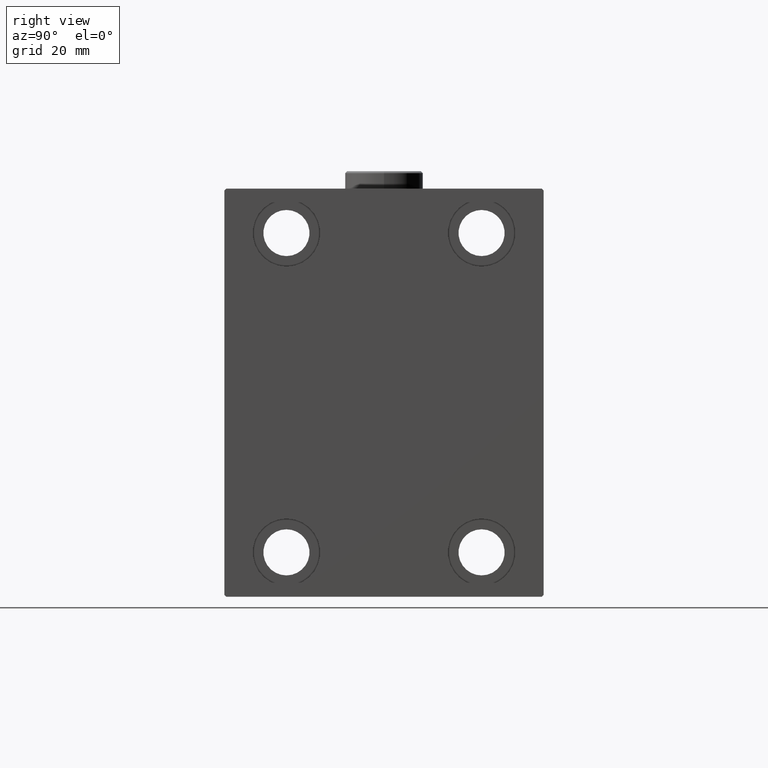
[diagram: clean part render]
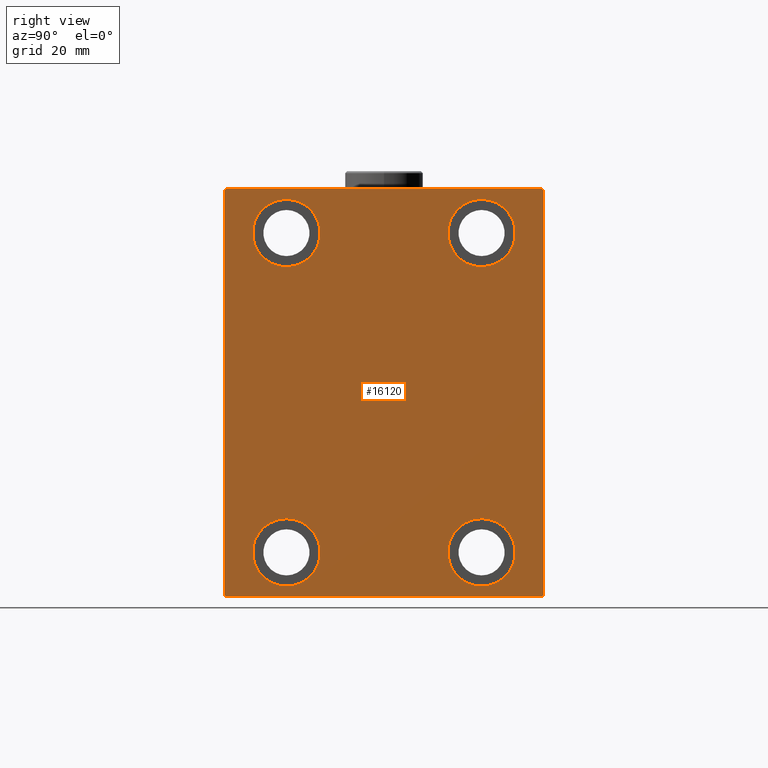
[diagram: same view with one face highlighted and labeled with its STEP entity id]
A machine part, right view. The second image highlights one B-rep face of the part: STEP entity #16120.
In plain terms, the highlighted planar face has unit normal (1, 0, 0).
Its self-contained STEP definition (entity closure, byte-faithful):
#36 = EDGE_CURVE ( 'NONE', #36765, #25345, #5199, .T. ) ;
#104 = CARTESIAN_POINT ( 'NONE',  ( 128.0000000000000000, 27.49999999999998934, -35.49999999999998579 ) ) ;
#234 = CIRCLE ( 'NONE', #43379, 9.500000000000001776 ) ;
#352 = CARTESIAN_POINT ( 'NONE',  ( 128.0000000000000000, -27.50000000000000000, -35.49999999999998579 ) ) ;
#570 = DIRECTION ( 'NONE',  ( -1.000000000000000000, -0.000000000000000000, -0.000000000000000000 ) ) ;
#1124 = AXIS2_PLACEMENT_3D ( 'NONE', #42879, #25683, #4851 ) ;
#1295 = VERTEX_POINT ( 'NONE', #21478 ) ;
#1840 = VECTOR ( 'NONE', #5210, 1000.000000000000000 ) ;
#2194 = DIRECTION ( 'NONE',  ( 0.000000000000000000, 0.000000000000000000, 1.000000000000000000 ) ) ;
#2512 = CIRCLE ( 'NONE', #18625, 9.500000000000001776 ) ;
#2750 = CARTESIAN_POINT ( 'NONE',  ( 128.0000000000000000, -51.00000000000000000, 51.00000000000000000 ) ) ;
#2752 = DIRECTION ( 'NONE',  ( -1.000000000000000000, -0.000000000000000000, -0.000000000000000000 ) ) ;
#2951 = VERTEX_POINT ( 'NONE', #4826 ) ;
#3701 = VERTEX_POINT ( 'NONE', #22477 ) ;
#3929 = CIRCLE ( 'NONE', #17855, 9.500000000000001776 ) ;
#4826 = CARTESIAN_POINT ( 'NONE',  ( 128.0000000000000000, 27.50000000000001066, 54.50000000000000711 ) ) ;
#4851 = DIRECTION ( 'NONE',  ( 0.000000000000000000, 0.000000000000000000, -1.000000000000000000 ) ) ;
#5177 = DIRECTION ( 'NONE',  ( 0.000000000000000000, 0.000000000000000000, 1.000000000000000000 ) ) ;
#5199 = CIRCLE ( 'NONE', #9573, 9.500000000000001776 ) ;
#5210 = DIRECTION ( 'NONE',  ( -0.000000000000000000, -0.7071067811865671127, 0.7071067811865279218 ) ) ;
#5244 = EDGE_CURVE ( 'NONE', #42056, #20050, #34265, .T. ) ;
#5653 = DIRECTION ( 'NONE',  ( -1.000000000000000000, -0.000000000000000000, -0.000000000000000000 ) ) ;
#5670 = DIRECTION ( 'NONE',  ( -0.000000000000000000, 0.7071067811865474617, -0.7071067811865474617 ) ) ;
#5776 = CARTESIAN_POINT ( 'NONE',  ( 128.0000000000000000, -45.00000000000000000, -57.50000000000000711 ) ) ;
#6927 = FACE_BOUND ( 'NONE', #15525, .T. ) ;
#6990 = CARTESIAN_POINT ( 'NONE',  ( 128.0000000000000000, -27.50000000000000000, -44.99999999999998579 ) ) ;
#7538 = CARTESIAN_POINT ( 'NONE',  ( 128.0000000000000000, -27.50000000000000000, -44.99999999999998579 ) ) ;
#8603 = VERTEX_POINT ( 'NONE', #13261 ) ;
#8627 = CARTESIAN_POINT ( 'NONE',  ( 128.0000000000000000, -27.50000000000000000, -54.49999999999998579 ) ) ;
#9199 = AXIS2_PLACEMENT_3D ( 'NONE', #29918, #16195, #37027 ) ;
#9522 = EDGE_CURVE ( 'NONE', #1295, #25813, #16744, .T. ) ;
#9573 = AXIS2_PLACEMENT_3D ( 'NONE', #7538, #27920, #18105 ) ;
#9759 = AXIS2_PLACEMENT_3D ( 'NONE', #6990, #570, #17765 ) ;
#9775 = ORIENTED_EDGE ( 'NONE', *, *, #9522, .T. ) ;
#9883 = EDGE_CURVE ( 'NONE', #2951, #22523, #234, .T. ) ;
#9923 = VECTOR ( 'NONE', #11597, 1000.000000000000000 ) ;
#10462 = ORIENTED_EDGE ( 'NONE', *, *, #36, .T. ) ;
#10494 = ORIENTED_EDGE ( 'NONE', *, *, #28536, .T. ) ;
#11040 = EDGE_CURVE ( 'NONE', #25345, #36765, #29501, .T. ) ;
#11042 = FACE_OUTER_BOUND ( 'NONE', #19273, .T. ) ;
#11586 = ORIENTED_EDGE ( 'NONE', *, *, #9883, .T. ) ;
#11597 = DIRECTION ( 'NONE',  ( 0.000000000000000000, -1.000000000000000000, -1.541976423090495387E-16 ) ) ;
#11718 = EDGE_LOOP ( 'NONE', ( #29528, #11586 ) ) ;
#12333 = EDGE_CURVE ( 'NONE', #22523, #2951, #3929, .T. ) ;
#12414 = LINE ( 'NONE', #5776, #37193 ) ;
#13261 = CARTESIAN_POINT ( 'NONE',  ( 128.0000000000000000, -27.49999999999998934, 54.50000000000000711 ) ) ;
#15438 = DIRECTION ( 'NONE',  ( -1.000000000000000000, -0.000000000000000000, -0.000000000000000000 ) ) ;
#15525 = EDGE_LOOP ( 'NONE', ( #44540, #31557 ) ) ;
#16120 = ADVANCED_FACE ( 'NONE', ( #38301, #6927, #20908, #18612, #11042 ), #25233, .T. ) ;
#16195 = DIRECTION ( 'NONE',  ( -1.000000000000000000, -0.000000000000000000, -0.000000000000000000 ) ) ;
#16294 = ORIENTED_EDGE ( 'NONE', *, *, #33199, .T. ) ;
#16744 = LINE ( 'NONE', #2750, #21446 ) ;
#16816 = CARTESIAN_POINT ( 'NONE',  ( 128.0000000000000000, 27.49999999999998934, -54.49999999999998579 ) ) ;
#17152 = VERTEX_POINT ( 'NONE', #28171 ) ;
#17254 = EDGE_LOOP ( 'NONE', ( #17961, #16294 ) ) ;
#17726 = EDGE_CURVE ( 'NONE', #30526, #8603, #28836, .T. ) ;
#17765 = DIRECTION ( 'NONE',  ( 0.000000000000000000, 0.000000000000000000, 1.000000000000000000 ) ) ;
#17855 = AXIS2_PLACEMENT_3D ( 'NONE', #34249, #5653, #2194 ) ;
#17961 = ORIENTED_EDGE ( 'NONE', *, *, #32776, .T. ) ;
#18105 = DIRECTION ( 'NONE',  ( 0.000000000000000000, 0.000000000000000000, 1.000000000000000000 ) ) ;
#18612 = FACE_BOUND ( 'NONE', #39325, .T. ) ;
#18625 = AXIS2_PLACEMENT_3D ( 'NONE', #43831, #15438, #33276 ) ;
#19148 = DIRECTION ( 'NONE',  ( 0.000000000000000000, -1.206764157201257045E-16, 1.000000000000000000 ) ) ;
#19168 = CARTESIAN_POINT ( 'NONE',  ( 128.0000000000000000, 27.49999999999998934, -44.99999999999998579 ) ) ;
#19273 = EDGE_LOOP ( 'NONE', ( #35870, #9775, #27138, #35843, #10494, #23410, #27344, #26202 ) ) ;
#19743 = DIRECTION ( 'NONE',  ( 0.000000000000000000, 0.000000000000000000, 1.000000000000000000 ) ) ;
#20050 = VERTEX_POINT ( 'NONE', #25868 ) ;
#20349 = DIRECTION ( 'NONE',  ( -1.000000000000000000, -0.000000000000000000, -0.000000000000000000 ) ) ;
#20390 = EDGE_CURVE ( 'NONE', #3701, #25720, #22630, .T. ) ;
#20406 = ORIENTED_EDGE ( 'NONE', *, *, #11040, .T. ) ;
#20794 = EDGE_CURVE ( 'NONE', #17152, #3701, #40433, .T. ) ;
#20908 = FACE_BOUND ( 'NONE', #11718, .T. ) ;
#21446 = VECTOR ( 'NONE', #23593, 1000.000000000000114 ) ;
#21478 = CARTESIAN_POINT ( 'NONE',  ( 128.0000000000000000, -44.49999999999997158, 57.49999999999999289 ) ) ;
#21570 = EDGE_CURVE ( 'NONE', #25720, #1295, #28308, .T. ) ;
#21868 = CARTESIAN_POINT ( 'NONE',  ( 128.0000000000000000, 44.50000000000000000, 57.50000000000000711 ) ) ;
#22477 = CARTESIAN_POINT ( 'NONE',  ( 128.0000000000000000, 45.00000000000000000, 57.00000000000000711 ) ) ;
#22523 = VERTEX_POINT ( 'NONE', #43037 ) ;
#22630 = LINE ( 'NONE', #36807, #1840 ) ;
#23126 = VECTOR ( 'NONE', #24635, 1000.000000000000000 ) ;
#23327 = CARTESIAN_POINT ( 'NONE',  ( 128.0000000000000000, 27.50000000000001066, 45.00000000000000711 ) ) ;
#23410 = ORIENTED_EDGE ( 'NONE', *, *, #41165, .T. ) ;
#23464 = CARTESIAN_POINT ( 'NONE',  ( 128.0000000000000000, 44.50000000000001421, -57.50000000000000711 ) ) ;
#23593 = DIRECTION ( 'NONE',  ( 0.000000000000000000, -0.7071067811865474617, -0.7071067811865474617 ) ) ;
#23815 = VECTOR ( 'NONE', #19148, 1000.000000000000000 ) ;
#24535 = CARTESIAN_POINT ( 'NONE',  ( 128.0000000000000000, -45.00000000000000000, 57.49999999999999289 ) ) ;
#24635 = DIRECTION ( 'NONE',  ( -0.000000000000000000, 0.7071067811865279218, 0.7071067811865671127 ) ) ;
#24762 = LINE ( 'NONE', #24535, #33147 ) ;
#25233 = PLANE ( 'NONE',  #1124 ) ;
#25345 = VERTEX_POINT ( 'NONE', #8627 ) ;
#25683 = DIRECTION ( 'NONE',  ( 1.000000000000000000, 0.000000000000000000, 0.000000000000000000 ) ) ;
#25720 = VERTEX_POINT ( 'NONE', #21868 ) ;
#25767 = CARTESIAN_POINT ( 'NONE',  ( 128.0000000000000000, 45.00000000000001421, -57.50000000000000711 ) ) ;
#25813 = VERTEX_POINT ( 'NONE', #39178 ) ;
#25868 = CARTESIAN_POINT ( 'NONE',  ( 128.0000000000000000, -44.50000000000002842, -57.50000000000000711 ) ) ;
#26202 = ORIENTED_EDGE ( 'NONE', *, *, #20390, .T. ) ;
#27138 = ORIENTED_EDGE ( 'NONE', *, *, #30096, .T. ) ;
#27344 = ORIENTED_EDGE ( 'NONE', *, *, #20794, .T. ) ;
#27920 = DIRECTION ( 'NONE',  ( -1.000000000000000000, -0.000000000000000000, -0.000000000000000000 ) ) ;
#28056 = VERTEX_POINT ( 'NONE', #104 ) ;
#28171 = CARTESIAN_POINT ( 'NONE',  ( 128.0000000000000000, 45.00000000000001421, -57.00000000000000711 ) ) ;
#28308 = LINE ( 'NONE', #42290, #9923 ) ;
#28521 = LINE ( 'NONE', #35169, #23126 ) ;
#28536 = EDGE_CURVE ( 'NONE', #20050, #29112, #12414, .T. ) ;
#28836 = CIRCLE ( 'NONE', #41280, 9.500000000000001776 ) ;
#29112 = VERTEX_POINT ( 'NONE', #23464 ) ;
#29501 = CIRCLE ( 'NONE', #9759, 9.500000000000001776 ) ;
#29528 = ORIENTED_EDGE ( 'NONE', *, *, #12333, .T. ) ;
#29918 = CARTESIAN_POINT ( 'NONE',  ( 128.0000000000000000, -27.49999999999998934, 45.00000000000000711 ) ) ;
#30096 = EDGE_CURVE ( 'NONE', #25813, #42056, #24762, .T. ) ;
#30304 = AXIS2_PLACEMENT_3D ( 'NONE', #19168, #36547, #5177 ) ;
#30526 = VERTEX_POINT ( 'NONE', #31977 ) ;
#31557 = ORIENTED_EDGE ( 'NONE', *, *, #39578, .T. ) ;
#31977 = CARTESIAN_POINT ( 'NONE',  ( 128.0000000000000000, -27.49999999999998934, 35.50000000000000711 ) ) ;
#32776 = EDGE_CURVE ( 'NONE', #35517, #28056, #41294, .T. ) ;
#33147 = VECTOR ( 'NONE', #38736, 1000.000000000000000 ) ;
#33199 = EDGE_CURVE ( 'NONE', #28056, #35517, #2512, .T. ) ;
#33276 = DIRECTION ( 'NONE',  ( 0.000000000000000000, 0.000000000000000000, 1.000000000000000000 ) ) ;
#33590 = CARTESIAN_POINT ( 'NONE',  ( 128.0000000000000000, -51.00000000000001421, -51.00000000000001421 ) ) ;
#34053 = CARTESIAN_POINT ( 'NONE',  ( 128.0000000000000000, -45.00000000000000000, -57.00000000000003553 ) ) ;
#34132 = CARTESIAN_POINT ( 'NONE',  ( 128.0000000000000000, -27.49999999999998934, 45.00000000000000711 ) ) ;
#34249 = CARTESIAN_POINT ( 'NONE',  ( 128.0000000000000000, 27.50000000000001066, 45.00000000000000711 ) ) ;
#34265 = LINE ( 'NONE', #33590, #38169 ) ;
#34779 = CIRCLE ( 'NONE', #9199, 9.500000000000001776 ) ;
#35169 = CARTESIAN_POINT ( 'NONE',  ( 128.0000000000000000, 51.00000000000125056, -50.99999999999842970 ) ) ;
#35517 = VERTEX_POINT ( 'NONE', #16816 ) ;
#35843 = ORIENTED_EDGE ( 'NONE', *, *, #5244, .T. ) ;
#35870 = ORIENTED_EDGE ( 'NONE', *, *, #21570, .T. ) ;
#36547 = DIRECTION ( 'NONE',  ( -1.000000000000000000, -0.000000000000000000, -0.000000000000000000 ) ) ;
#36680 = DIRECTION ( 'NONE',  ( 0.000000000000000000, 1.000000000000000000, 0.000000000000000000 ) ) ;
#36765 = VERTEX_POINT ( 'NONE', #352 ) ;
#36807 = CARTESIAN_POINT ( 'NONE',  ( 128.0000000000000000, 50.99999999999877076, 51.00000000000159162 ) ) ;
#37027 = DIRECTION ( 'NONE',  ( 0.000000000000000000, 0.000000000000000000, 1.000000000000000000 ) ) ;
#37193 = VECTOR ( 'NONE', #36680, 1000.000000000000000 ) ;
#38169 = VECTOR ( 'NONE', #5670, 1000.000000000000114 ) ;
#38301 = FACE_BOUND ( 'NONE', #17254, .T. ) ;
#38736 = DIRECTION ( 'NONE',  ( 0.000000000000000000, 0.000000000000000000, -1.000000000000000000 ) ) ;
#39178 = CARTESIAN_POINT ( 'NONE',  ( 128.0000000000000000, -45.00000000000000000, 56.99999999999999289 ) ) ;
#39325 = EDGE_LOOP ( 'NONE', ( #20406, #10462 ) ) ;
#39578 = EDGE_CURVE ( 'NONE', #8603, #30526, #34779, .T. ) ;
#40433 = LINE ( 'NONE', #25767, #23815 ) ;
#41165 = EDGE_CURVE ( 'NONE', #29112, #17152, #28521, .T. ) ;
#41280 = AXIS2_PLACEMENT_3D ( 'NONE', #34132, #2752, #19743 ) ;
#41294 = CIRCLE ( 'NONE', #30304, 9.500000000000001776 ) ;
#41407 = DIRECTION ( 'NONE',  ( 0.000000000000000000, 0.000000000000000000, 1.000000000000000000 ) ) ;
#42056 = VERTEX_POINT ( 'NONE', #34053 ) ;
#42290 = CARTESIAN_POINT ( 'NONE',  ( 128.0000000000000000, 45.00000000000000000, 57.50000000000000711 ) ) ;
#42879 = CARTESIAN_POINT ( 'NONE',  ( 128.0000000000000000, 0.000000000000000000, 0.000000000000000000 ) ) ;
#43037 = CARTESIAN_POINT ( 'NONE',  ( 128.0000000000000000, 27.50000000000001066, 35.50000000000000711 ) ) ;
#43379 = AXIS2_PLACEMENT_3D ( 'NONE', #23327, #20349, #41407 ) ;
#43831 = CARTESIAN_POINT ( 'NONE',  ( 128.0000000000000000, 27.49999999999998934, -44.99999999999998579 ) ) ;
#44540 = ORIENTED_EDGE ( 'NONE', *, *, #17726, .T. ) ;